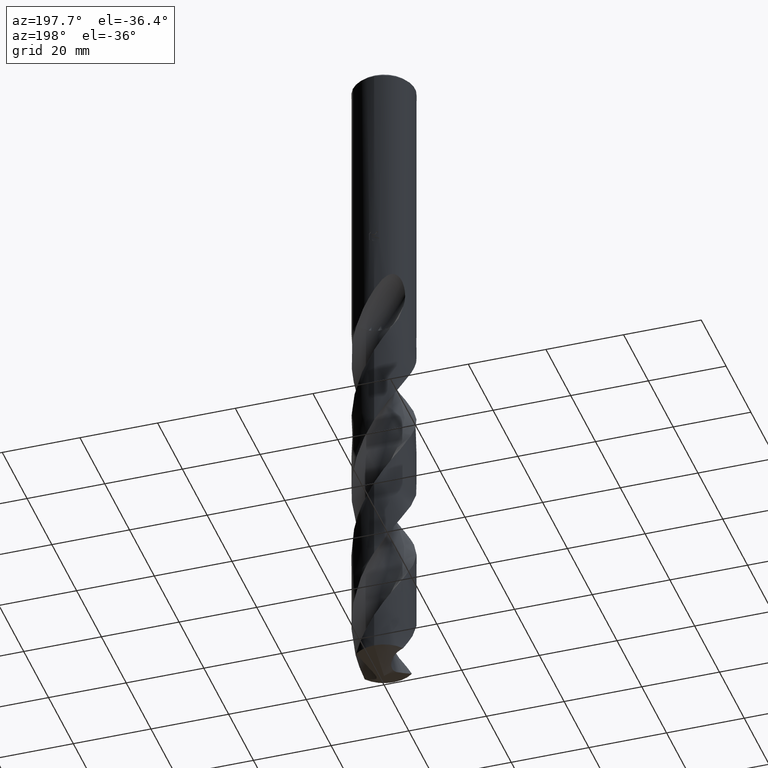
[diagram: clean part render]
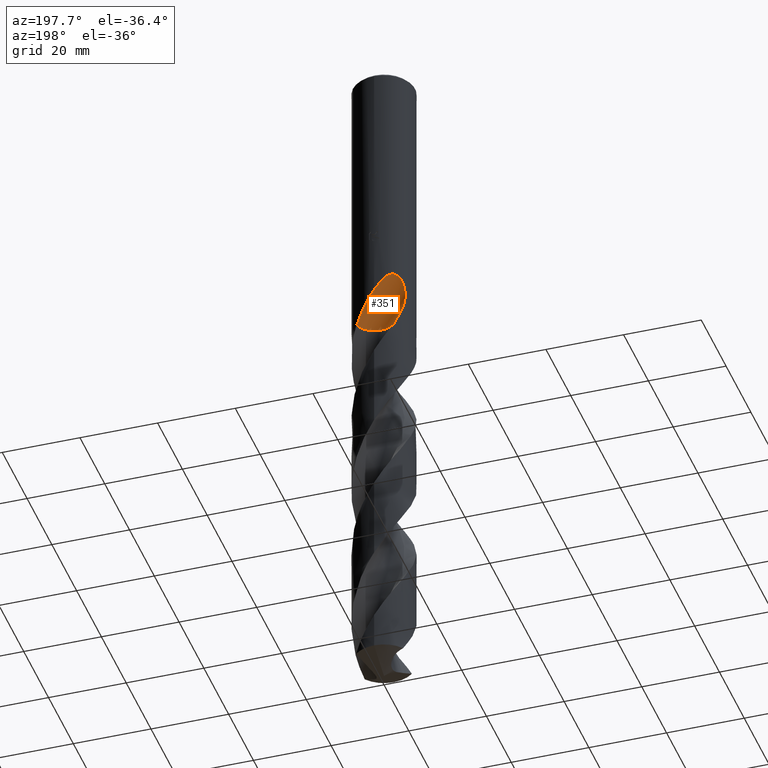
[diagram: same view with one face highlighted and labeled with its STEP entity id]
A machine part, auxiliary view. The second image highlights one B-rep face of the part: STEP entity #351.
In plain terms, the highlighted face is a SurfaceOfRevolution surface.
Its self-contained STEP definition (entity closure, byte-faithful):
#293=EDGE_CURVE('',#315,#355,#774,.T.);
#315=VERTEX_POINT('',#797);
#351=ADVANCED_FACE('',(#835),#836,.F.);
#355=VERTEX_POINT('',#840);
#381=VERTEX_POINT('',#869);
#387=EDGE_CURVE('',#381,#583,#875,.T.);
#583=VERTEX_POINT('',#1090);
#605=EDGE_CURVE('',#381,#355,#1115,.T.);
#695=EDGE_CURVE('',#583,#315,#1209,.T.);
#774=B_SPLINE_CURVE_WITH_KNOTS('',3,(#2761,#2762,#2763,#2764,#2765,#2766,#2767,#2768,#2769,#2770,#2771,#2772,#2773,#2774,#2775,#2776,#2777,#2778,#2779,#2780,#2781,#2782,#2783,#2784,#2785,#2786,#2787,#2788,#2789,#2790),.UNSPECIFIED.,.F.,.F.,(4,2,2,2,2,2,2,2,2,2,2,2,2,2,4),(0.0,3.91590281283365,6.05573409657614,7.99442629748213,10.2470388063583,12.9526719938593,15.2954417411815,16.3579478699027,17.1345550297596,17.8694819377937,18.8018247316814,20.1659176186891,22.1051095659781,23.373787757119,24.7070714168344),.UNSPECIFIED.);
#797=CARTESIAN_POINT('',(-2.43676324777897E-012,8.0,-65.8011934870331));
#835=FACE_OUTER_BOUND('',#3140,.T.);
#836=SURFACE_OF_REVOLUTION('',#3141,#3142);
#840=CARTESIAN_POINT('',(-6.50913730642338,4.65092802848285,-69.9243581719634));
#869=CARTESIAN_POINT('',(-3.77436116390051,3.96243725254428,-74.3));
#875=B_SPLINE_CURVE_WITH_KNOTS('',3,(#3238,#3239,#3240,#3241,#3242,#3243,#3244,#3245,#3246,#3247,#3248,#3249,#3250,#3251,#3252,#3253),.UNSPECIFIED.,.F.,.F.,(4,2,2,2,2,2,2,4),(0.0,2.0836895667088,4.16726819539403,6.25068154252341,8.33394110976862,10.4171212506066,11.6681682764238,12.9192366316779),.UNSPECIFIED.);
#1090=CARTESIAN_POINT('',(5.09533746900463,6.1674578293619,-74.3));
#1115=CIRCLE('',#6125,34.7620791855138);
#1209=B_SPLINE_CURVE_WITH_KNOTS('',3,(#7222,#7223,#7224,#7225,#7226,#7227,#7228,#7229,#7230,#7231,#7232,#7233,#7234,#7235,#7236,#7237,#7238,#7239,#7240,#7241,#7242,#7243,#7244,#7245,#7246,#7247,#7248,#7249,#7250,#7251),.UNSPECIFIED.,.F.,.F.,(4,2,2,2,2,2,2,2,2,2,2,2,2,2,4),(0.0,3.91590281283365,6.05573409657614,7.99442629748213,10.2470388063583,12.9526719938593,15.2954417411815,16.3579478699027,17.1345550297596,17.8694819377937,18.8018247316814,20.1659176186891,22.1051095659781,23.373787757119,24.7070714168344),.UNSPECIFIED.);
#2761=CARTESIAN_POINT('',(5.09533746900464,6.1674578293619,-74.3));
#2762=CARTESIAN_POINT('',(4.56781300680808,6.60328004856705,-73.1884301763901));
#2763=CARTESIAN_POINT('',(3.96147717069399,6.99059414093799,-72.1519049479666));
#2764=CARTESIAN_POINT('',(2.90421070218769,7.46547307658951,-70.4201014509066));
#2765=CARTESIAN_POINT('',(2.52357567905526,7.60214076383473,-69.8104798396807));
#2766=CARTESIAN_POINT('',(1.78663426127284,7.8064124649378,-68.6302760887287));
#2767=CARTESIAN_POINT('',(1.43360700960138,7.8785812952792,-68.0651771779035));
#2768=CARTESIAN_POINT('',(0.669397616388719,7.98271463327917,-66.8471682891755));
#2769=CARTESIAN_POINT('',(0.251818952600778,8.00713112291719,-66.184706384959));
#2770=CARTESIAN_POINT('',(-0.675477540706848,7.98748343496672,-64.7676149629881));
#2771=CARTESIAN_POINT('',(-1.22529818168477,7.92706306859738,-63.9612757067075));
#2772=CARTESIAN_POINT('',(-2.28510817287339,7.68329109102345,-62.6324744414042));
#2773=CARTESIAN_POINT('',(-2.87106821308122,7.49776193190795,-61.9845420802107));
#2774=CARTESIAN_POINT('',(-3.75814303339007,7.06900746724023,-61.377511312445));
#2775=CARTESIAN_POINT('',(-4.0519265721904,6.90705827610741,-61.2274173351229));
#2776=CARTESIAN_POINT('',(-4.56671142469977,6.57360084481971,-61.112136804995));
#2777=CARTESIAN_POINT('',(-4.77785754992476,6.42173920744754,-61.1100020707401));
#2778=CARTESIAN_POINT('',(-5.17113183649067,6.10893524316712,-61.2109696484492));
#2779=CARTESIAN_POINT('',(-5.34313168535857,5.95785593701407,-61.3056222911061));
#2780=CARTESIAN_POINT('',(-5.69315463373455,5.62677348313844,-61.601767405673));
#2781=CARTESIAN_POINT('',(-5.8550915965787,5.45519699647586,-61.8204157500394));
#2782=CARTESIAN_POINT('',(-6.18679112368928,5.08054745049969,-62.4191394066159));
#2783=CARTESIAN_POINT('',(-6.34533440279499,4.87652583157186,-62.8632166951692));
#2784=CARTESIAN_POINT('',(-6.64345502896676,4.46687448665397,-64.1056738234787));
#2785=CARTESIAN_POINT('',(-6.75122285237994,4.29239836170944,-64.9905286536634));
#2786=CARTESIAN_POINT('',(-6.80451842235327,4.20714986738576,-66.6280143733146));
#2787=CARTESIAN_POINT('',(-6.79196220113431,4.22796907317365,-67.2800385825896));
#2788=CARTESIAN_POINT('',(-6.70335655751584,4.36716841121043,-68.6033173532593));
#2789=CARTESIAN_POINT('',(-6.62425545031344,4.48981613845744,-69.2695915934735));
#2790=CARTESIAN_POINT('',(-6.50913730642338,4.65092802848284,-69.9243581719634));
#3140=EDGE_LOOP('',(#7398,#7399,#7400,#7401));
#3141=(B_SPLINE_CURVE(3,(#7403,#7404,#7405,#7406,#7407,#7408,#7409,#7410,#7411),.UNSPECIFIED.,.F.,.F.)B_SPLINE_CURVE_WITH_KNOTS((4,1,3,1,4),(-2.85636795280894,-2.55358031761993,-2.25079268243092,-1.94800504724191,-1.64521741205289),.UNSPECIFIED.)RATIONAL_B_SPLINE_CURVE((1.09168035202335,1.03056011734112,0.969439882658882,1.03056011734112,1.09168035202335,1.03056011734112,0.969439882658882,1.03056011734112,1.09168035202335))BOUNDED_CURVE()REPRESENTATION_ITEM('')GEOMETRIC_REPRESENTATION_ITEM()CURVE());
#3142=AXIS1_PLACEMENT('',#7418,#7419);
#3238=CARTESIAN_POINT('',(-3.77436116390052,3.96243725254428,-74.3));
#3239=CARTESIAN_POINT('',(-3.28325834864442,3.47127938767134,-74.3));
#3240=CARTESIAN_POINT('',(-2.70091602511993,3.0807383603764,-74.3));
#3241=CARTESIAN_POINT('',(-1.419343980209,2.54488406185063,-74.3));
#3242=CARTESIAN_POINT('',(-0.732370640255498,2.40467993224093,-74.3));
#3243=CARTESIAN_POINT('',(0.656593623707864,2.3955077267827,-74.3));
#3244=CARTESIAN_POINT('',(1.34530366756504,2.52660606080058,-74.3));
#3245=CARTESIAN_POINT('',(2.63365296637478,3.04541370223928,-74.3));
#3246=CARTESIAN_POINT('',(3.22097847844025,3.42814303030848,-74.3));
#3247=CARTESIAN_POINT('',(4.21584059978022,4.39718172107111,-74.3));
#3248=CARTESIAN_POINT('',(4.61386873028476,4.97421506276283,-74.3));
#3249=CARTESIAN_POINT('',(5.05599600915316,5.99389366862002,-74.3));
#3250=CARTESIAN_POINT('',(5.17643840928698,6.39463200964358,-74.3));
#3251=CARTESIAN_POINT('',(5.32148778578125,7.21595781968526,-74.3));
#3252=CARTESIAN_POINT('',(5.34559358198902,7.63371686652313,-74.3));
#3253=CARTESIAN_POINT('',(5.32078838992873,8.05,-74.3));
#6125=AXIS2_PLACEMENT_3D('',#7755,#7756,#7757);
#7222=CARTESIAN_POINT('',(5.09533746900464,6.1674578293619,-74.3));
#7223=CARTESIAN_POINT('',(4.56781300680808,6.60328004856705,-73.1884301763901));
#7224=CARTESIAN_POINT('',(3.96147717069399,6.99059414093799,-72.1519049479666));
#7225=CARTESIAN_POINT('',(2.90421070218769,7.46547307658951,-70.4201014509066));
#7226=CARTESIAN_POINT('',(2.52357567905526,7.60214076383473,-69.8104798396807));
#7227=CARTESIAN_POINT('',(1.78663426127284,7.8064124649378,-68.6302760887287));
#7228=CARTESIAN_POINT('',(1.43360700960138,7.8785812952792,-68.0651771779035));
#7229=CARTESIAN_POINT('',(0.669397616388719,7.98271463327917,-66.8471682891755));
#7230=CARTESIAN_POINT('',(0.251818952600778,8.00713112291719,-66.184706384959));
#7231=CARTESIAN_POINT('',(-0.675477540706848,7.98748343496672,-64.7676149629881));
#7232=CARTESIAN_POINT('',(-1.22529818168477,7.92706306859738,-63.9612757067075));
#7233=CARTESIAN_POINT('',(-2.28510817287339,7.68329109102345,-62.6324744414042));
#7234=CARTESIAN_POINT('',(-2.87106821308122,7.49776193190795,-61.9845420802107));
#7235=CARTESIAN_POINT('',(-3.75814303339007,7.06900746724023,-61.377511312445));
#7236=CARTESIAN_POINT('',(-4.0519265721904,6.90705827610741,-61.2274173351229));
#7237=CARTESIAN_POINT('',(-4.56671142469977,6.57360084481971,-61.112136804995));
#7238=CARTESIAN_POINT('',(-4.77785754992476,6.42173920744754,-61.1100020707401));
#7239=CARTESIAN_POINT('',(-5.17113183649067,6.10893524316712,-61.2109696484492));
#7240=CARTESIAN_POINT('',(-5.34313168535857,5.95785593701407,-61.3056222911061));
#7241=CARTESIAN_POINT('',(-5.69315463373455,5.62677348313844,-61.601767405673));
#7242=CARTESIAN_POINT('',(-5.8550915965787,5.45519699647586,-61.8204157500394));
#7243=CARTESIAN_POINT('',(-6.18679112368928,5.08054745049969,-62.4191394066159));
#7244=CARTESIAN_POINT('',(-6.34533440279499,4.87652583157186,-62.8632166951692));
#7245=CARTESIAN_POINT('',(-6.64345502896676,4.46687448665397,-64.1056738234787));
#7246=CARTESIAN_POINT('',(-6.75122285237994,4.29239836170944,-64.9905286536634));
#7247=CARTESIAN_POINT('',(-6.80451842235327,4.20714986738576,-66.6280143733146));
#7248=CARTESIAN_POINT('',(-6.79196220113431,4.22796907317365,-67.2800385825896));
#7249=CARTESIAN_POINT('',(-6.70335655751584,4.36716841121043,-68.6033173532593));
#7250=CARTESIAN_POINT('',(-6.62425545031344,4.48981613845744,-69.2695915934735));
#7251=CARTESIAN_POINT('',(-6.50913730642338,4.65092802848284,-69.9243581719634));
#7398=ORIENTED_EDGE('',*,*,#387,.F.);
#7399=ORIENTED_EDGE('',*,*,#605,.T.);
#7400=ORIENTED_EDGE('',*,*,#293,.F.);
#7401=ORIENTED_EDGE('',*,*,#695,.F.);
#7403=CARTESIAN_POINT('',(-3.77123616390052,3.96209716609948,-74.305));
#7404=CARTESIAN_POINT('',(-3.0325590969274,3.22341105216108,-74.305));
#7405=CARTESIAN_POINT('',(-1.11178561019235,2.17380832457055,-74.305));
#7406=CARTESIAN_POINT('',(1.06492212838374,2.40398237595941,-74.305));
#7407=CARTESIAN_POINT('',(2.03087531204552,2.80177054970407,-74.305));
#7408=CARTESIAN_POINT('',(2.99682849570729,3.19955872344874,-74.305));
#7409=CARTESIAN_POINT('',(4.70439138833316,4.56896211209539,-74.305));
#7410=CARTESIAN_POINT('',(5.32902609804487,6.66678673596965,-74.305));
#7411=CARTESIAN_POINT('',(5.33331154753289,7.7114314694174,-74.305));
#7418=CARTESIAN_POINT('',(-2.71190016280487,38.66666665,-75.999937601753));
#7419=DIRECTION('',(0.847998304005088,-0.0,0.52999894000318));
#7755=CARTESIAN_POINT('',(-2.71190016280487,38.66666665,-75.999937601753));
#7756=DIRECTION('',(-0.847998304005088,0.0,-0.52999894000318));
#7757=DIRECTION('',(-0.0535598123557514,-0.994880693119272,0.0856956997692023));